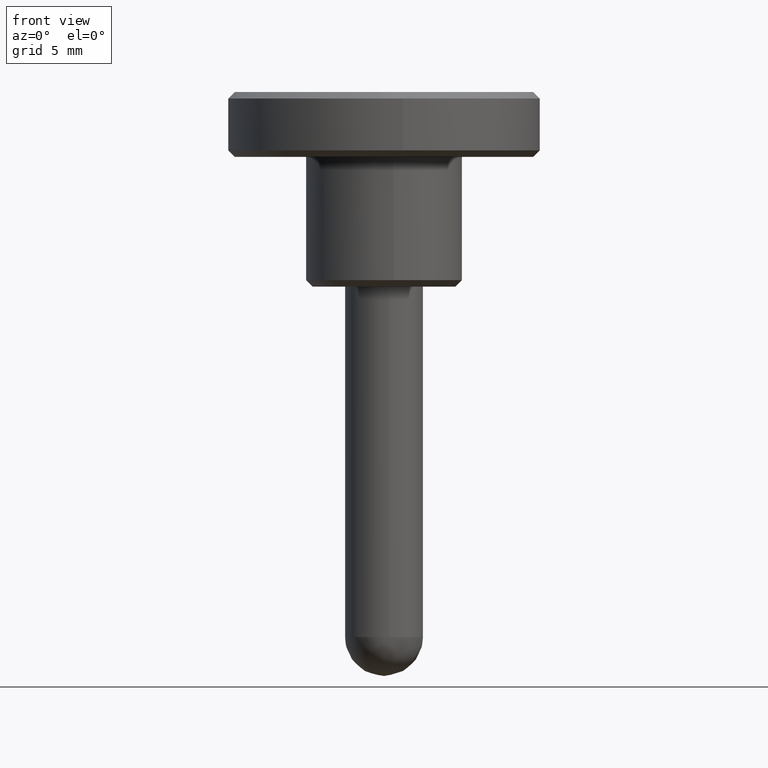
[diagram: clean part render]
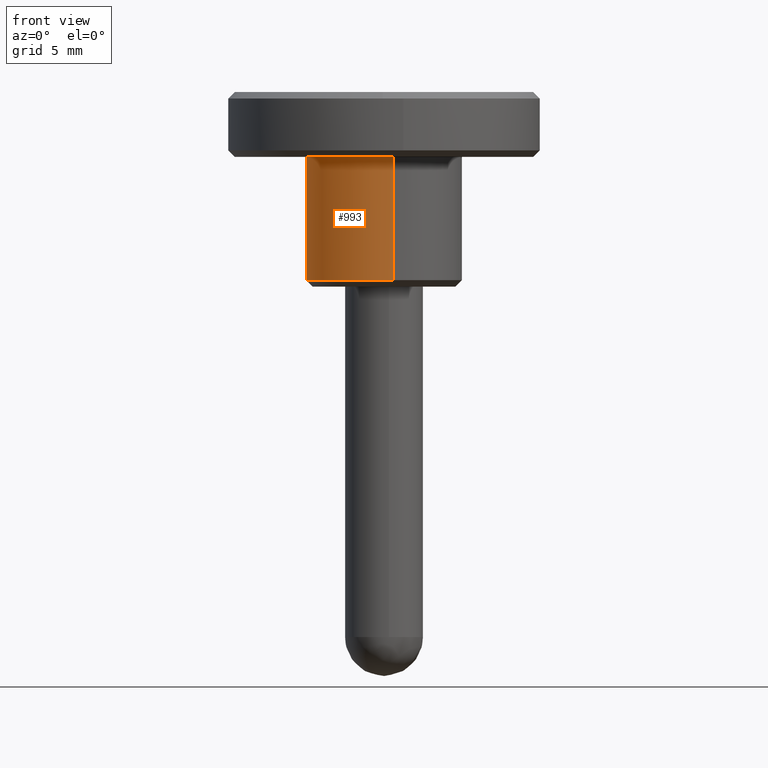
[diagram: same view with one face highlighted and labeled with its STEP entity id]
A machine part, front view. The second image highlights one B-rep face of the part: STEP entity #993.
In plain terms, the highlighted face is a freeform B-spline surface patch.
Its self-contained STEP definition (entity closure, byte-faithful):
#498=CARTESIAN_POINT('',(-2.425292591987203,-5.487982857418220,0.500000000005299));
#499=VERTEX_POINT('',#498);
#500=CARTESIAN_POINT('',(0.744768012509857,-5.953597282949369,0.499999999999945));
#501=VERTEX_POINT('',#500);
#502=CARTESIAN_POINT('',(-2.425292591987203,-5.487982857418220,0.500000000005299));
#503=CARTESIAN_POINT('',(-1.266693703577293,-6.000000000000001,0.499999999999945));
#504=CARTESIAN_POINT('',(0.0,-6.0,0.499999999999945));
#505=CARTESIAN_POINT('',(0.373829565232209,-6.000000000000002,0.499999999999945));
#506=CARTESIAN_POINT('',(0.744768012509857,-5.953597282949369,0.499999999999945));
#514=(BOUNDED_CURVE()B_SPLINE_CURVE(2,(#502,#503,#504,#505,#506),.UNSPECIFIED.,.F.,.U.)B_SPLINE_CURVE_WITH_KNOTS((3,2,3),(0.181361578456645,0.250000000000000,0.271473928972451),.UNSPECIFIED.)CURVE()GEOMETRIC_REPRESENTATION_ITEM()RATIONAL_B_SPLINE_CURVE((0.883326595748411,0.919585087119568,1.0,0.974841727290750,0.954005430271323))REPRESENTATION_ITEM(''));
#515=EDGE_CURVE('',#499,#501,#514,.T.);
#558=CARTESIAN_POINT('',(-0.052356379131834,5.999771563111713,0.499999999998588));
#559=VERTEX_POINT('',#558);
#616=CARTESIAN_POINT('',(-6.0,0.0,0.499999999999945));
#617=VERTEX_POINT('',#616);
#618=CARTESIAN_POINT('',(-6.0,0.0,0.499999999999945));
#619=CARTESIAN_POINT('',(-6.0,-3.908220015459765,0.499999999999945));
#620=CARTESIAN_POINT('',(-2.425292591987203,-5.487982857418220,0.500000000005299));
#628=(BOUNDED_CURVE()B_SPLINE_CURVE(2,(#618,#619,#620),.UNSPECIFIED.,.F.,.U.)B_SPLINE_CURVE_WITH_KNOTS((3,3),(0.0,0.181361578456645),.UNSPECIFIED.)CURVE()GEOMETRIC_REPRESENTATION_ITEM()RATIONAL_B_SPLINE_CURVE((1.0,0.787521694066979,0.883326595748411))REPRESENTATION_ITEM(''));
#629=EDGE_CURVE('',#617,#499,#628,.T.);
#631=CARTESIAN_POINT('',(-0.052356379131834,5.999771563111713,0.499999999998588));
#632=CARTESIAN_POINT('',(-6.000000000000001,5.947870073020050,0.499999999999945));
#633=CARTESIAN_POINT('',(-6.0,0.0,0.499999999999945));
#641=(BOUNDED_CURVE()B_SPLINE_CURVE(2,(#631,#632,#633),.UNSPECIFIED.,.F.,.U.)B_SPLINE_CURVE_WITH_KNOTS((3,3),(0.751539811137863,1.0),.UNSPECIFIED.)CURVE()GEOMETRIC_REPRESENTATION_ITEM()RATIONAL_B_SPLINE_CURVE((0.996414220641926,0.708910782148682,1.0))REPRESENTATION_ITEM(''));
#642=EDGE_CURVE('',#559,#617,#641,.T.);
#887=CARTESIAN_POINT('',(-0.052354600068355,5.999771578637839,10.0));
#888=VERTEX_POINT('',#887);
#889=CARTESIAN_POINT('',(-0.052356379131834,5.999771563111713,0.499999999998588));
#890=CARTESIAN_POINT('',(-0.052354600068355,5.999771578637839,10.0));
#891=QUASI_UNIFORM_CURVE('',1,(#889,#890),.UNSPECIFIED.,.F.,.U.);
#892=EDGE_CURVE('',#559,#888,#891,.T.);
#911=CARTESIAN_POINT('',(0.744757151939698,-5.953598641537307,10.0));
#912=VERTEX_POINT('',#911);
#926=CARTESIAN_POINT('',(0.744768012509857,-5.953597282949369,0.499999999999945));
#927=CARTESIAN_POINT('',(0.744757151939698,-5.953598641537307,10.0));
#928=QUASI_UNIFORM_CURVE('',1,(#926,#927),.UNSPECIFIED.,.F.,.U.);
#929=EDGE_CURVE('',#501,#912,#928,.T.);
#934=CARTESIAN_POINT('',(-0.052359212990243,5.999771538385026,0.262499999999943));
#935=CARTESIAN_POINT('',(-6.052130751375269,5.947412325394783,0.262499999999943));
#936=CARTESIAN_POINT('',(-5.999771538385026,-0.052359212990243,0.262499999999943));
#937=CARTESIAN_POINT('',(-5.947412325394783,-6.052130751375269,0.262499999999943));
#938=CARTESIAN_POINT('',(0.052359212990243,-5.999771538385026,0.262499999999943));
#939=CARTESIAN_POINT('',(0.399900953749042,-5.996738587561654,0.262499999999943));
#940=CARTESIAN_POINT('',(0.744768012478976,-5.953597282953231,0.262499999999943));
#941=CARTESIAN_POINT('',(-0.052359212990243,5.999771538385026,10.243437500000001));
#942=CARTESIAN_POINT('',(-6.052130751375269,5.947412325394783,10.243437500000004));
#943=CARTESIAN_POINT('',(-5.999771538385026,-0.052359212990243,10.243437500000001));
#944=CARTESIAN_POINT('',(-5.947412325394783,-6.052130751375269,10.243437500000004));
#945=CARTESIAN_POINT('',(0.052359212990243,-5.999771538385026,10.243437500000001));
#946=CARTESIAN_POINT('',(0.399900953749042,-5.996738587561654,10.243437500000002));
#947=CARTESIAN_POINT('',(0.744768012478976,-5.953597282953231,10.243437500000006));
#955=(BOUNDED_SURFACE()B_SPLINE_SURFACE(2,1,((#934,#941),(#935,#942),(#936,#943),(#937,#944),(#938,#945),(#939,#946),(#940,#947)),.UNSPECIFIED.,.F.,.F.,.U.)B_SPLINE_SURFACE_WITH_KNOTS((3,2,2,3),(2,2),(0.0,9.941125496954278,19.882250993908560,20.677541033664902),(0.0,9.980937500000064),.UNSPECIFIED.)GEOMETRIC_REPRESENTATION_ITEM()RATIONAL_B_SPLINE_SURFACE(((1.0,1.0),(0.707106781186548,0.707106781186548),(1.0,1.0),(0.707106781186548,0.707106781186548),(1.0,1.0),(0.976568542494924,0.976568542494924),(0.956886118190660,0.956886118190660)))REPRESENTATION_ITEM('')SURFACE());
#956=ORIENTED_EDGE('',*,*,#629,.T.);
#957=ORIENTED_EDGE('',*,*,#515,.T.);
#958=ORIENTED_EDGE('',*,*,#929,.T.);
#959=CARTESIAN_POINT('',(-6.0,0.0,10.0));
#960=VERTEX_POINT('',#959);
#961=CARTESIAN_POINT('',(0.744757151939698,-5.953598641537307,10.0));
#962=CARTESIAN_POINT('',(0.373824071364941,-6.000000000000001,10.0));
#963=CARTESIAN_POINT('',(0.0,-6.0,10.0));
#964=CARTESIAN_POINT('',(-6.0,-6.0,10.000000000000002));
#965=CARTESIAN_POINT('',(-6.0,0.0,10.0));
#973=(BOUNDED_CURVE()B_SPLINE_CURVE(2,(#961,#962,#963,#964,#965),.UNSPECIFIED.,.F.,.U.)B_SPLINE_CURVE_WITH_KNOTS((3,2,3),(0.728526378672860,0.750000000000000,1.0),.UNSPECIFIED.)CURVE()GEOMETRIC_REPRESENTATION_ITEM()RATIONAL_B_SPLINE_CURVE((0.954006027292820,0.974842087719652,1.0,0.707106781186548,1.0))REPRESENTATION_ITEM(''));
#974=EDGE_CURVE('',#912,#960,#973,.T.);
#975=ORIENTED_EDGE('',*,*,#974,.T.);
#976=CARTESIAN_POINT('',(-6.0,0.0,10.0));
#977=CARTESIAN_POINT('',(-6.000000000000002,5.947871836761023,10.0));
#978=CARTESIAN_POINT('',(-0.052354600068355,5.999771578637839,10.0));
#986=(BOUNDED_CURVE()B_SPLINE_CURVE(2,(#976,#977,#978),.UNSPECIFIED.,.F.,.U.)B_SPLINE_CURVE_WITH_KNOTS((3,3),(0.0,0.248460241092337),.UNSPECIFIED.)CURVE()GEOMETRIC_REPRESENTATION_ITEM()RATIONAL_B_SPLINE_CURVE((1.0,0.708910720957196,0.996414341517349))REPRESENTATION_ITEM(''));
#987=EDGE_CURVE('',#960,#888,#986,.T.);
#988=ORIENTED_EDGE('',*,*,#987,.T.);
#989=ORIENTED_EDGE('',*,*,#892,.F.);
#990=ORIENTED_EDGE('',*,*,#642,.T.);
#991=EDGE_LOOP('',(#956,#957,#958,#975,#988,#989,#990));
#992=FACE_OUTER_BOUND('',#991,.T.);
#993=ADVANCED_FACE('',(#992),#955,.T.);